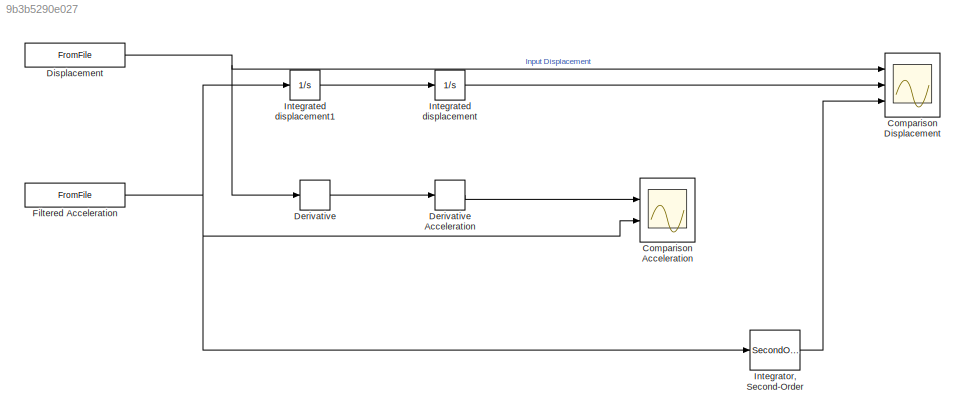
MODEL slx_9b3b5290e027
KIND model
CONFIG AbsTol = auto
CONFIG EnableMultiTasking = off
CONFIG FixedStep = auto
CONFIG MaxStep = auto
CONFIG MinStep = auto
CONFIG RelTol = 1e-3
CONFIG SampleTimeConstraint = Unconstrained
CONFIG Solver = VariableStepAuto
CONFIG SolverName = VariableStepAuto
CONFIG StartTime = 0.0
CONFIG StopTime = 91
BLOCK [Scope] Comparison Acceleration
  NumInputPorts = 2
  Ports = [2]
  ScopeSpecificationString = Simulink.scopes.TimeScopeBlockCfg('CurrentConfiguration', extmgr.ConfigurationSet(extmgr.Configuration('Core','General UI',true,'FigureColor',[1 1 1]),extmgr.Configuration('Core','Source UI',true),extmgr.Configuration('Sources','WiredSimulink',true,'SampleTime','1/3200','DataLoggingVariableName','ScopeData1'),extmgr.Configuration('Visuals','Time Domain',true,'PlotType','Line','SerializedDisplays',...<+1874ch>
BLOCK [Scope] Comparison Displacement
  NumInputPorts = 3
  Ports = [3]
  ScopeSpecificationString = Simulink.scopes.TimeScopeBlockCfg('CurrentConfiguration', extmgr.ConfigurationSet(extmgr.Configuration('Core','General UI',true,'FigureColor',[1 1 1]),extmgr.Configuration('Core','Source UI',true),extmgr.Configuration('Sources','WiredSimulink',true,'SampleTime','1/3200','DataLoggingVariableName','ScopeData1'),extmgr.Configuration('Visuals','Time Domain',true,'PlotType','Line','SerializedDisplays',...<+1942ch>
BLOCK [Derivative] Derivative
  CoefficientInTFapproximation = 0
BLOCK [Derivative] Derivative Acceleration
  CoefficientInTFapproximation = 0
BLOCK [FromFile] Displacement
  ExtrapolationAfterLastDataPoint = Hold last value
  ExtrapolationBeforeFirstDataPoint = Hold first value
  FileName = REC0826ch2_dis.mat
  SampleTime = 1/3200
BLOCK [FromFile] Filtered Acceleration
  ExtrapolationAfterLastDataPoint = Hold last value
  ExtrapolationBeforeFirstDataPoint = Hold first value
  FileName = REC0826_filteracce.mat
  SampleTime = 1/3200
BLOCK [Integrator] Integrated displacement
  Ports = [1, 1]
BLOCK [Integrator] Integrated displacement1
  Ports = [1, 1]
BLOCK [SecondOrderIntegrator] Integrator, Second-Order
  Ports = [1, 1]
  ShowOutput = x
LINE Derivative Acceleration:1 -> Comparison Acceleration:1
LINE Derivative:1 -> Derivative Acceleration:1
NET Displacement:1 -> Comparison Displacement:1, Derivative:1
NET Filtered Acceleration:1 -> Comparison Acceleration:2, Integrated displacement1:1, Integrator, Second-Order:1
LINE Integrated displacement1:1 -> Integrated displacement:1
LINE Integrated displacement:1 -> Comparison Displacement:2
LINE Integrator, Second-Order:1 -> Comparison Displacement:3
note: NET lines group one-source signal fan-out (src -> all destinations, sorted); 1:1 wires keep LINE
